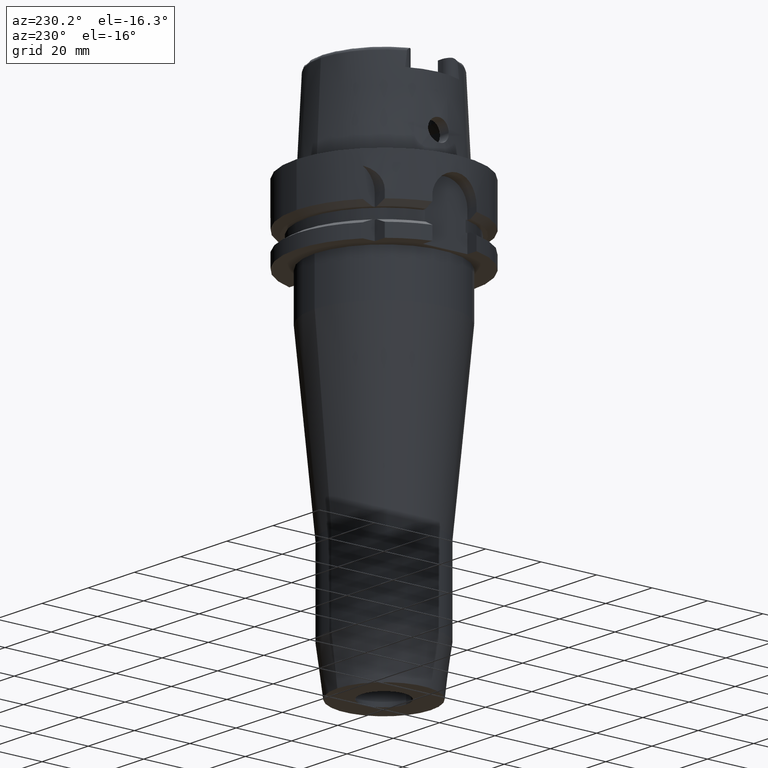
[diagram: clean part render]
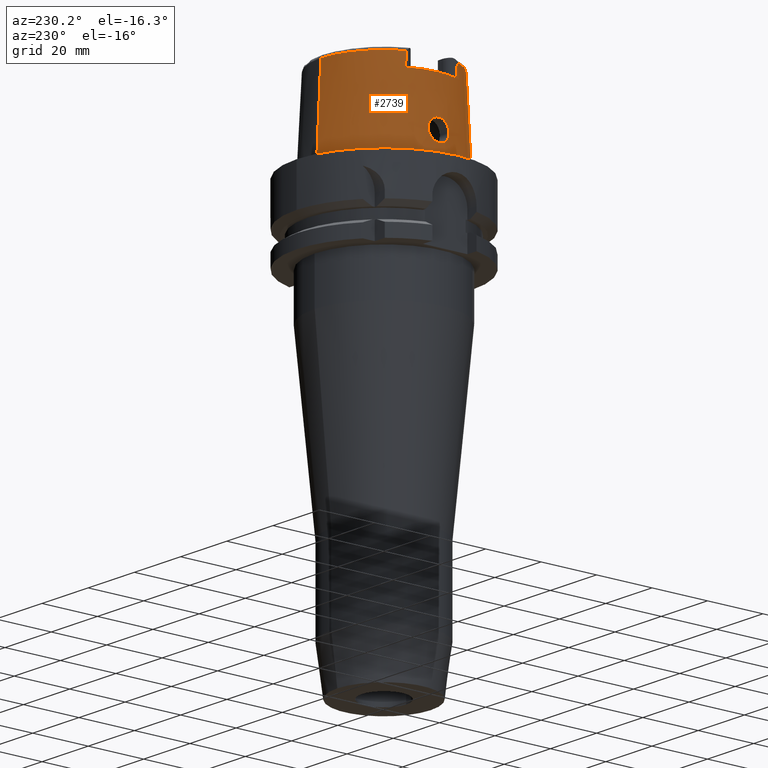
[diagram: same view with one face highlighted and labeled with its STEP entity id]
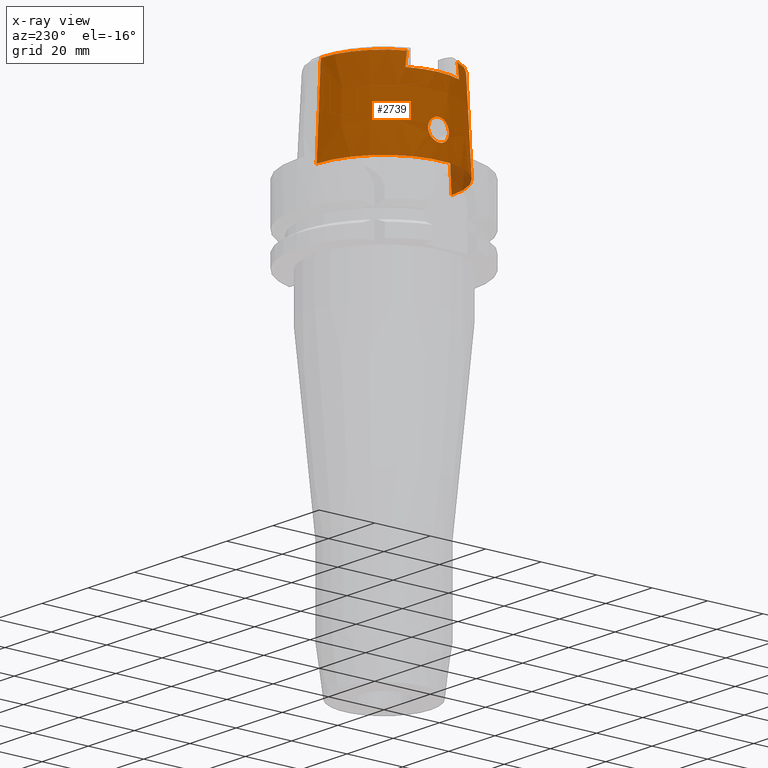
[diagram: x-ray of the same camera — body ghosted, the highlighted face saturated]
A machine part, auxiliary view. The second image highlights one B-rep face of the part: STEP entity #2739.
The next image is the same camera in x-ray: the body ghosted, the highlighted face saturated — about 3% of this face is hidden behind the body in this view.
In plain terms, the highlighted conical surface has half-angle 2.862 deg.
Its self-contained STEP definition (entity closure, byte-faithful):
#69=CARTESIAN_POINT('',(0.E0,0.E0,2.6E1));
#70=DIRECTION('',(0.E0,0.E0,-1.E0));
#71=DIRECTION('',(-9.068002397791E-1,-4.215605829967E-1,0.E0));
#72=AXIS2_PLACEMENT_3D('',#69,#70,#71);
#160=CARTESIAN_POINT('',(-2.086999931535E1,-9.702216590561E0,2.6E1));
#161=CARTESIAN_POINT('',(-2.086999931535E1,-9.642048820361E0,2.650727061302E1));
#162=CARTESIAN_POINT('',(-2.087000013188E1,-9.520999784311E0,2.752034962291E1));
#163=CARTESIAN_POINT('',(-2.087000056538E1,-9.336893546791E0,2.903557629453E1));
#164=CARTESIAN_POINT('',(-2.086999859286E1,-9.212633972085E0,3.004273962856E1));
#165=CARTESIAN_POINT('',(-2.086999859286E1,-9.150003160547E0,3.054568941686E1));
#170=CARTESIAN_POINT('',(-2.086999859286E1,-9.150003160547E0,3.054568941686E1));
#171=CARTESIAN_POINT('',(-2.086999859286E1,-9.145656550786E0,3.058059438465E1));
#172=CARTESIAN_POINT('',(-2.086998097501E1,-9.136997529037E0,3.065032563367E1));
#173=CARTESIAN_POINT('',(-2.086989311877E1,-9.124126494439E0,3.075512926385E1));
#174=CARTESIAN_POINT('',(-2.086979784207E1,-9.115619992630E0,3.082498881156E1));
#175=CARTESIAN_POINT('',(-2.086974104059E1,-9.111384043401E0,3.085992601097E1));
#180=DIRECTION('',(8.032179027582E-5,-4.993928193351E-2,-9.987522523971E-1));
#181=VECTOR('',#180,3.089848062794E1);
#182=CARTESIAN_POINT('',(-2.481821280836E-3,-2.277198688789E1,
3.085992712280E1));
#183=LINE('',#182,#181);
#187=CARTESIAN_POINT('',(-2.086974110890E1,9.111383545308E0,3.085992739891E1));
#188=CARTESIAN_POINT('',(-2.086979791523E1,9.115619747532E0,3.082498808788E1));
#189=CARTESIAN_POINT('',(-2.086989333338E1,9.124126689090E0,3.075511924067E1));
#190=CARTESIAN_POINT('',(-2.086998014064E1,9.137000168771E0,3.065036215730E1));
#191=CARTESIAN_POINT('',(-2.087000040551E1,9.145652229696E0,3.058051608324E1));
#192=CARTESIAN_POINT('',(-2.087000040551E1,9.149999089201E0,3.054560915662E1));
#197=CARTESIAN_POINT('',(-2.087000040551E1,9.149999089201E0,3.054560915662E1));
#198=CARTESIAN_POINT('',(-2.087000040551E1,9.212612082841E0,3.004280312583E1));
#199=CARTESIAN_POINT('',(-2.087000020370E1,9.336923098267E0,2.903562847786E1));
#200=CARTESIAN_POINT('',(-2.086999867880E1,9.521029051521E0,2.752042416367E1));
#201=CARTESIAN_POINT('',(-2.087000294700E1,9.642028220320E0,2.650729690943E1));
#202=CARTESIAN_POINT('',(-2.087000294700E1,9.702199254900E0,2.6E1));
#207=CARTESIAN_POINT('',(-2.405252611747E1,6.507195594501E-14,5.25E0));
#208=CARTESIAN_POINT('',(-2.405252611747E1,-3.539371138725E-1,5.25E0));
#209=CARTESIAN_POINT('',(-2.403138355696E1,-1.062739339113E0,5.351237667572E0));
#210=CARTESIAN_POINT('',(-2.394445199445E1,-2.040101645239E0,5.792927260805E0));
#211=CARTESIAN_POINT('',(-2.382210989187E1,-2.864329205136E0,6.499620767989E0));
#212=CARTESIAN_POINT('',(-2.369483467558E1,-3.456623539294E0,7.416346440128E0));
#213=CARTESIAN_POINT('',(-2.359383677536E1,-3.763241030920E0,8.460493495634E0));
#214=CARTESIAN_POINT('',(-2.353912722835E1,-3.762050460600E0,9.544159398722E0));
#215=CARTESIAN_POINT('',(-2.353479111729E1,-3.457772329575E0,1.057722020441E1));
#216=CARTESIAN_POINT('',(-2.356916712298E1,-2.879309625069E0,1.148124151293E1));
#217=CARTESIAN_POINT('',(-2.362130524511E1,-2.062866255238E0,1.219341663838E1));
#218=CARTESIAN_POINT('',(-2.366596758220E1,-1.075173607198E0,1.264654233397E1));
#219=CARTESIAN_POINT('',(-2.367751368058E1,-3.584931676637E-1,1.275E1));
#220=CARTESIAN_POINT('',(-2.367751368058E1,0.E0,1.275E1));
#225=CARTESIAN_POINT('',(-2.367751368058E1,0.E0,1.275E1));
#226=CARTESIAN_POINT('',(-2.367751368058E1,3.573698471562E-1,1.275E1));
#227=CARTESIAN_POINT('',(-2.366602710060E1,1.072470232321E0,1.264702361282E1));
#228=CARTESIAN_POINT('',(-2.362156522329E1,2.058419648222E0,1.219632408891E1));
#229=CARTESIAN_POINT('',(-2.356917684752E1,2.879139548555E0,1.148245592891E1));
#230=CARTESIAN_POINT('',(-2.353465226491E1,3.460321969280E0,1.057244261510E1));
#231=CARTESIAN_POINT('',(-2.353933189422E1,3.762049253971E0,9.540031611172E0));
#232=CARTESIAN_POINT('',(-2.359357530962E1,3.762853521961E0,8.466800667022E0));
#233=CARTESIAN_POINT('',(-2.369280644531E1,3.463778475162E0,7.434523008741E0));
#234=CARTESIAN_POINT('',(-2.381915118120E1,2.880552311287E0,6.518217263145E0));
#235=CARTESIAN_POINT('',(-2.394281608994E1,2.055623099746E0,5.801334996630E0));
#236=CARTESIAN_POINT('',(-2.403140465058E1,1.065775828138E0,5.351068072298E0));
#237=CARTESIAN_POINT('',(-2.405252611747E1,3.543530117688E-1,5.25E0));
#238=CARTESIAN_POINT('',(-2.405252611747E1,6.507195594501E-14,5.25E0));
#287=CARTESIAN_POINT('',(0.E0,0.E0,3.085992712280E1));
#288=DIRECTION('',(0.E0,0.E0,-1.E0));
#289=DIRECTION('',(0.E0,-1.E0,0.E0));
#290=AXIS2_PLACEMENT_3D('',#287,#288,#289);
#483=CARTESIAN_POINT('',(0.E0,0.E0,3.085992712280E1));
#484=DIRECTION('',(0.E0,0.E0,-1.E0));
#485=DIRECTION('',(-9.164655183266E-1,4.001136759952E-1,0.E0));
#486=AXIS2_PLACEMENT_3D('',#483,#484,#485);
#537=DIRECTION('',(-8.032179027593E-5,4.993928193351E-2,-9.987522523971E-1));
#538=VECTOR('',#537,3.089848062794E1);
#539=CARTESIAN_POINT('',(2.481821280840E-3,2.277198688789E1,3.085992712280E1));
#540=LINE('',#539,#538);
#638=CARTESIAN_POINT('',(0.E0,0.E0,-7.389644451905E-13));
#639=DIRECTION('',(0.E0,0.E0,1.E0));
#640=DIRECTION('',(0.E0,1.E0,0.E0));
#641=AXIS2_PLACEMENT_3D('',#638,#639,#640);
#2295=CARTESIAN_POINT('',(-2.086999931535E1,-9.702216590561E0,2.6E1));
#2296=VERTEX_POINT('',#2295);
#2297=CARTESIAN_POINT('',(-2.087E1,9.702213322399E0,2.6E1));
#2298=VERTEX_POINT('',#2297);
#2323=VERTEX_POINT('',#187);
#2324=VERTEX_POINT('',#192);
#2325=VERTEX_POINT('',#165);
#2326=VERTEX_POINT('',#175);
#2327=CARTESIAN_POINT('',(0.E0,-2.277198729362E1,3.085992712280E1));
#2328=VERTEX_POINT('',#2327);
#2329=CARTESIAN_POINT('',(0.E0,-2.431503482329E1,-3.410605131648E-13));
#2330=VERTEX_POINT('',#2329);
#2331=CARTESIAN_POINT('',(0.E0,2.431503482329E1,-7.389644451905E-13));
#2332=VERTEX_POINT('',#2331);
#2333=CARTESIAN_POINT('',(2.481821280840E-3,2.277198688789E1,3.085992712280E1));
#2334=VERTEX_POINT('',#2333);
#2335=VERTEX_POINT('',#207);
#2336=VERTEX_POINT('',#220);
#2708=CARTESIAN_POINT('',(0.E0,0.E0,1.542996356140E1));
#2709=DIRECTION('',(0.E0,0.E0,-1.E0));
#2710=DIRECTION('',(0.E0,-1.E0,0.E0));
#2711=AXIS2_PLACEMENT_3D('',#2708,#2709,#2710);
#2712=CONICAL_SURFACE('',#2711,2.354351105845E1,2.8625E0);
#2713=ORIENTED_EDGE('',*,*,#2646,.F.);
#2715=ORIENTED_EDGE('',*,*,#2714,.T.);
#2716=ORIENTED_EDGE('',*,*,#2696,.T.);
#2718=ORIENTED_EDGE('',*,*,#2717,.F.);
#2720=ORIENTED_EDGE('',*,*,#2719,.T.);
#2722=ORIENTED_EDGE('',*,*,#2721,.F.);
#2724=ORIENTED_EDGE('',*,*,#2723,.F.);
#2726=ORIENTED_EDGE('',*,*,#2725,.F.);
#2728=ORIENTED_EDGE('',*,*,#2727,.T.);
#2730=ORIENTED_EDGE('',*,*,#2729,.T.);
#2731=EDGE_LOOP('',(#2713,#2715,#2716,#2718,#2720,#2722,#2724,#2726,#2728,
#2730));
#2732=FACE_OUTER_BOUND('',#2731,.F.);
#2734=ORIENTED_EDGE('',*,*,#2733,.T.);
#2736=ORIENTED_EDGE('',*,*,#2735,.T.);
#2737=EDGE_LOOP('',(#2734,#2736));
#2738=FACE_BOUND('',#2737,.F.);
#73=CIRCLE('',#72,2.301499170874E1);
#166=B_SPLINE_CURVE_WITH_KNOTS('',3,(#160,#161,#162,#163,#164,#165),
.UNSPECIFIED.,.F.,.F.,(4,1,1,4),(0.E0,3.333333333333E-1,6.666666666667E-1,1.E0),
.UNSPECIFIED.);
#176=B_SPLINE_CURVE_WITH_KNOTS('',3,(#170,#171,#172,#173,#174,#175),
.UNSPECIFIED.,.F.,.F.,(4,1,1,4),(0.E0,3.333333333333E-1,6.666666666667E-1,1.E0),
.UNSPECIFIED.);
#193=B_SPLINE_CURVE_WITH_KNOTS('',3,(#187,#188,#189,#190,#191,#192),
.UNSPECIFIED.,.F.,.F.,(4,1,1,4),(0.E0,3.333333333333E-1,6.666666666667E-1,1.E0),
.UNSPECIFIED.);
#203=B_SPLINE_CURVE_WITH_KNOTS('',3,(#197,#198,#199,#200,#201,#202),
.UNSPECIFIED.,.F.,.F.,(4,1,1,4),(0.E0,3.333333333333E-1,6.666666666667E-1,1.E0),
.UNSPECIFIED.);
#221=B_SPLINE_CURVE_WITH_KNOTS('',3,(#207,#208,#209,#210,#211,#212,#213,#214,
#215,#216,#217,#218,#219,#220),.UNSPECIFIED.,.F.,.F.,(4,1,1,1,1,1,1,1,1,1,1,4),(
0.E0,9.090909090909E-2,1.818181818182E-1,2.727272727273E-1,3.636363636364E-1,
4.545454545455E-1,5.454545454545E-1,6.363636363636E-1,7.272727272727E-1,
8.181818181818E-1,9.090909090909E-1,1.E0),.UNSPECIFIED.);
#239=B_SPLINE_CURVE_WITH_KNOTS('',3,(#225,#226,#227,#228,#229,#230,#231,#232,
#233,#234,#235,#236,#237,#238),.UNSPECIFIED.,.F.,.F.,(4,1,1,1,1,1,1,1,1,1,1,4),(
0.E0,9.090909090909E-2,1.818181818182E-1,2.727272727273E-1,3.636363636364E-1,
4.545454545455E-1,5.454545454545E-1,6.363636363636E-1,7.272727272727E-1,
8.181818181818E-1,9.090909090909E-1,1.E0),.UNSPECIFIED.);
#291=CIRCLE('',#290,2.277198729362E1);
#487=CIRCLE('',#486,2.277198729362E1);
#642=CIRCLE('',#641,2.431503482329E1);
#2646=EDGE_CURVE('',#2296,#2298,#73,.T.);
#2696=EDGE_CURVE('',#2325,#2326,#176,.T.);
#2714=EDGE_CURVE('',#2296,#2325,#166,.T.);
#2717=EDGE_CURVE('',#2328,#2326,#291,.T.);
#2719=EDGE_CURVE('',#2328,#2330,#183,.T.);
#2721=EDGE_CURVE('',#2332,#2330,#642,.T.);
#2723=EDGE_CURVE('',#2334,#2332,#540,.T.);
#2725=EDGE_CURVE('',#2323,#2334,#487,.T.);
#2727=EDGE_CURVE('',#2323,#2324,#193,.T.);
#2729=EDGE_CURVE('',#2324,#2298,#203,.T.);
#2733=EDGE_CURVE('',#2335,#2336,#221,.T.);
#2735=EDGE_CURVE('',#2336,#2335,#239,.T.);
#2739=ADVANCED_FACE('',(#2732,#2738),#2712,.T.);